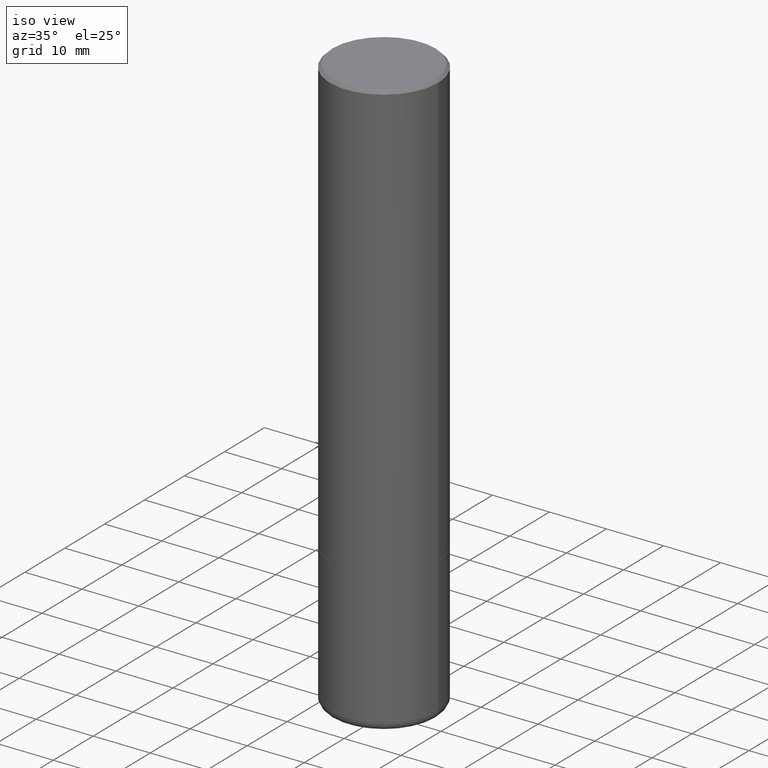
[diagram: clean part render]
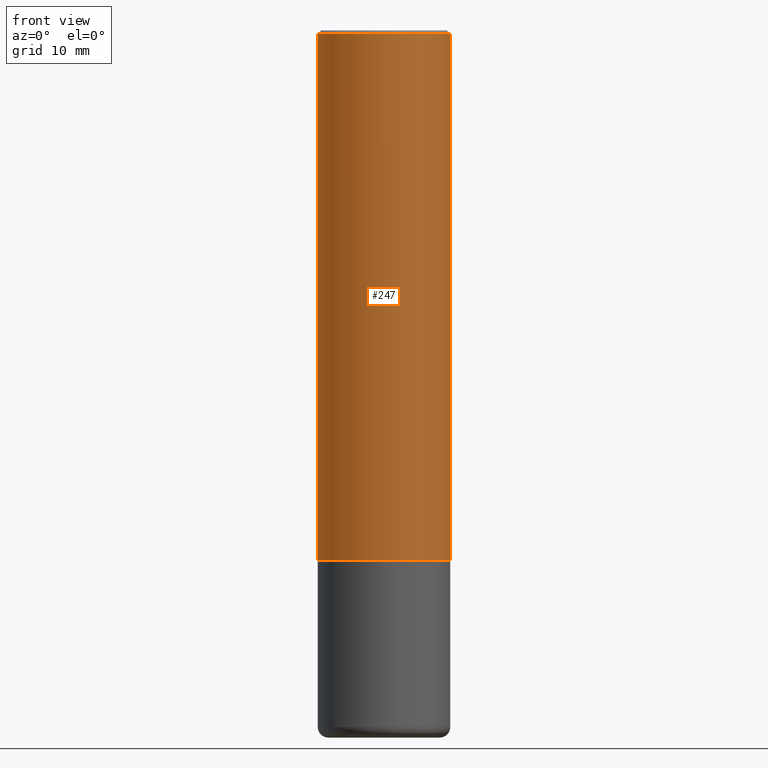
[diagram: tour spotlight — one face highlighted and labeled with its STEP entity id]
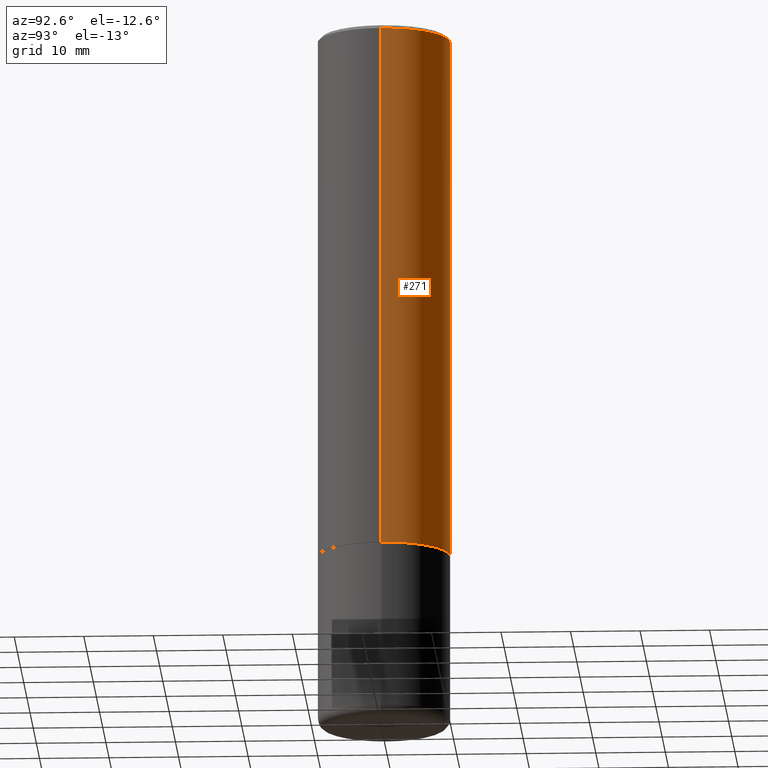
[diagram: tour spotlight — one face highlighted and labeled with its STEP entity id]
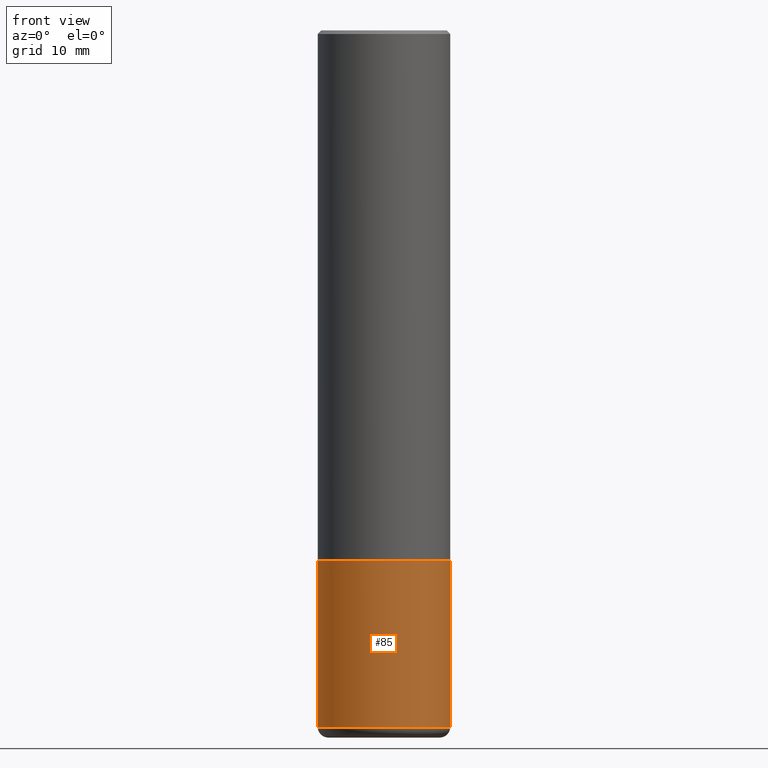
[diagram: tour spotlight — one face highlighted and labeled with its STEP entity id]
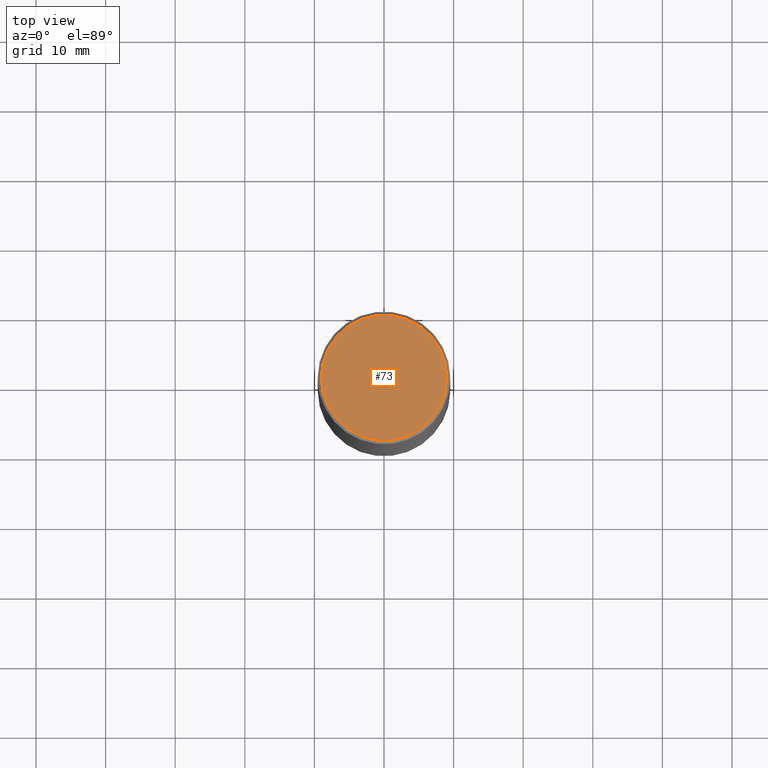
[diagram: tour spotlight — one face highlighted and labeled with its STEP entity id]
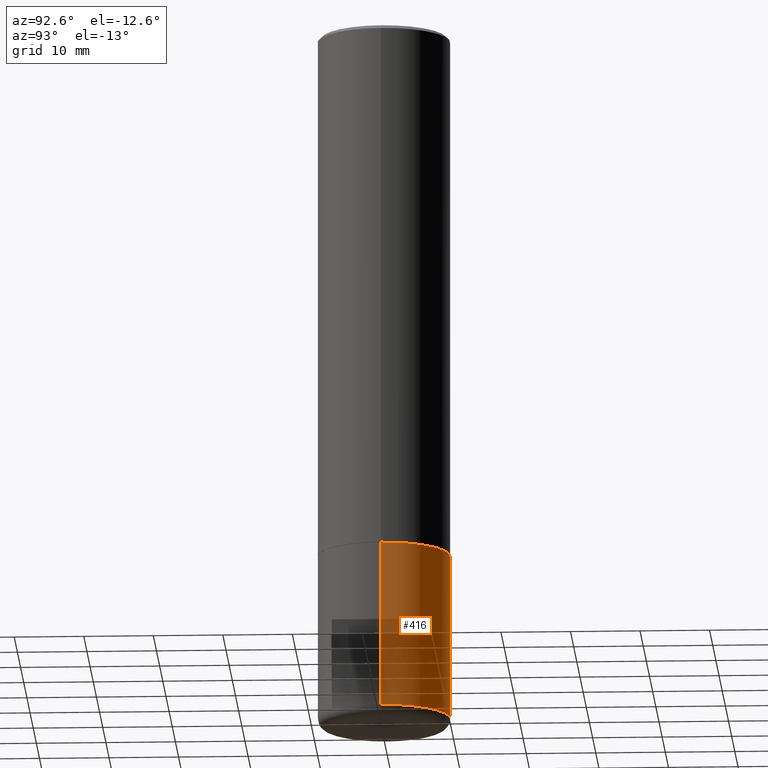
[diagram: tour spotlight — one face highlighted and labeled with its STEP entity id]
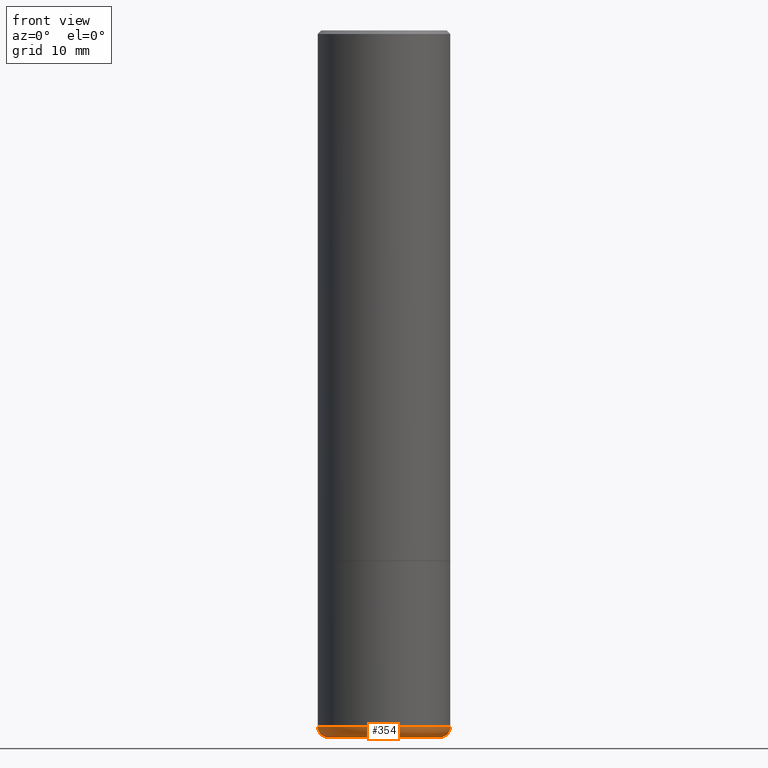
[diagram: tour spotlight — one face highlighted and labeled with its STEP entity id]
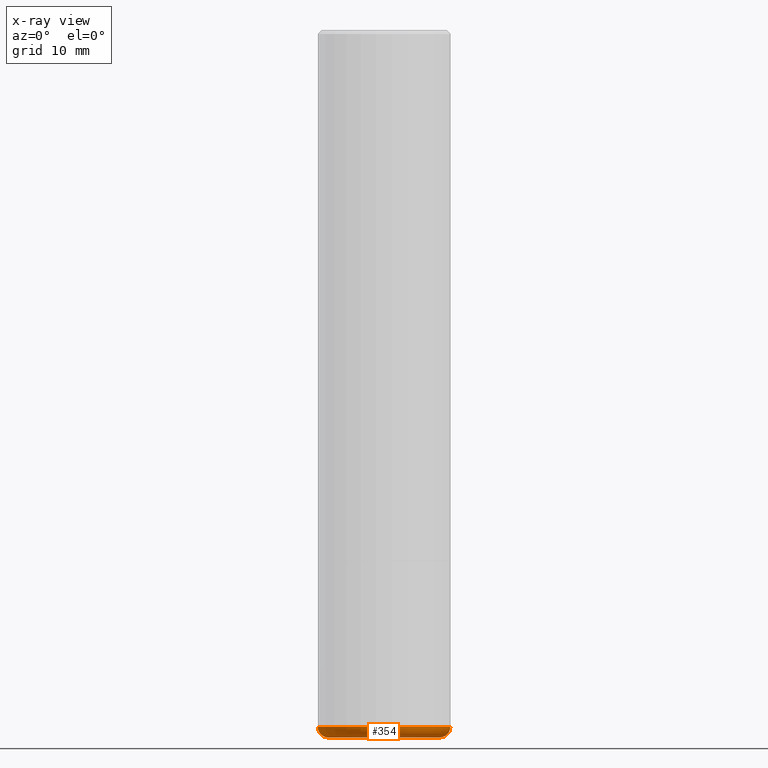
[diagram: x-ray of the same camera — body ghosted, this tour face saturated]
A machine part: a face-by-face anatomy tour. The part has 17 B-rep faces; the first image is the clean iso view, then the 6 largest visible faces are spotlighted one at a time (largest first), each with its STEP entity span.

Face 1 — front view, entity #247. In plain terms, the highlighted cylindrical surface (partial cylindrical patch) has radius 9.525 mm, axis along (-0, 0, 1).
Definition (entity closure, byte-faithful):
#24 = DIRECTION ( 'NONE',  ( -2.445468806185136877E-29, 3.491481338843145188E-15, 1.000000000000000000 ) ) ;
#31 = CIRCLE ( 'NONE', #484, 0.3749999999999991673 ) ;
#32 = CYLINDRICAL_SURFACE ( 'NONE', #436, 0.3749999999999992784 ) ;
#41 = DIRECTION ( 'NONE',  ( -2.445468806185136597E-29, 3.491481338843145583E-15, 1.000000000000000000 ) ) ;
#59 = CARTESIAN_POINT ( 'NONE',  ( 0.000000000000000000, 0.000000000000000000, 0.000000000000000000 ) ) ;
#67 = CARTESIAN_POINT ( 'NONE',  ( 0.3749999999999995004, -1.308956353932294179E-14, -2.999000000000000554 ) ) ;
#71 = ORIENTED_EDGE ( 'NONE', *, *, #192, .F. ) ;
#88 = CARTESIAN_POINT ( 'NONE',  ( -0.3749999999999992784, 2.664535259100370569E-15, -1.844600658845586235E-29 ) ) ;
#95 = DIRECTION ( 'NONE',  ( 1.000000000000000000, -6.982962677686267499E-15, 4.876176775795935232E-29 ) ) ;
#102 = DIRECTION ( 'NONE',  ( 1.000000000000000000, -6.982962677686266711E-15, 0.000000000000000000 ) ) ;
#106 = EDGE_CURVE ( 'NONE', #262, #216, #312, .T. ) ;
#124 = VERTEX_POINT ( 'NONE', #128 ) ;
#128 = CARTESIAN_POINT ( 'NONE',  ( -0.3749999999999991673, 2.548781377355480407E-15, -0.02000000000000020858 ) ) ;
#133 = CARTESIAN_POINT ( 'NONE',  ( 0.3749999999999991673, -2.642516375941182112E-15, -0.02000000000000020858 ) ) ;
#147 = ORIENTED_EDGE ( 'NONE', *, *, #462, .T. ) ;
#152 = DIRECTION ( 'NONE',  ( 1.000000000000000000, -6.982962677686266711E-15, 0.000000000000000000 ) ) ;
#167 = DIRECTION ( 'NONE',  ( -2.445468806185136877E-29, 3.491481338843145188E-15, 1.000000000000000000 ) ) ;
#171 = CARTESIAN_POINT ( 'NONE',  ( 0.3749999999999992784, -2.618611004132345283E-15, 1.828566290923472279E-29 ) ) ;
#181 = ORIENTED_EDGE ( 'NONE', *, *, #106, .T. ) ;
#192 = EDGE_CURVE ( 'NONE', #261, #124, #439, .T. ) ;
#210 = DIRECTION ( 'NONE',  ( -2.445468806185136597E-29, 3.491481338843145583E-15, 1.000000000000000000 ) ) ;
#213 = CARTESIAN_POINT ( 'NONE',  ( 4.890937612370324831E-31, -6.982962677686364332E-17, -0.02000000000000020858 ) ) ;
#216 = VERTEX_POINT ( 'NONE', #133 ) ;
#247 = ADVANCED_FACE ( 'NONE', ( #252 ), #32, .T. ) ;
#252 = FACE_OUTER_BOUND ( 'NONE', #256, .T. ) ;
#256 = EDGE_LOOP ( 'NONE', ( #71, #147, #181, #375 ) ) ;
#261 = VERTEX_POINT ( 'NONE', #486 ) ;
#262 = VERTEX_POINT ( 'NONE', #67 ) ;
#277 = EDGE_CURVE ( 'NONE', #124, #216, #31, .T. ) ;
#278 = VECTOR ( 'NONE', #24, 39.37007874015748143 ) ;
#288 = AXIS2_PLACEMENT_3D ( 'NONE', #382, #41, #152 ) ;
#312 = LINE ( 'NONE', #171, #451 ) ;
#325 = DIRECTION ( 'NONE',  ( -2.445468806185136597E-29, 3.491481338843145583E-15, 1.000000000000000000 ) ) ;
#375 = ORIENTED_EDGE ( 'NONE', *, *, #277, .F. ) ;
#382 = CARTESIAN_POINT ( 'NONE',  ( 7.333960949749226429E-29, -1.047095253519059492E-14, -2.999000000000000554 ) ) ;
#429 = CIRCLE ( 'NONE', #288, 0.3749999999999995004 ) ;
#436 = AXIS2_PLACEMENT_3D ( 'NONE', #59, #210, #95 ) ;
#439 = LINE ( 'NONE', #88, #278 ) ;
#451 = VECTOR ( 'NONE', #167, 39.37007874015748143 ) ;
#462 = EDGE_CURVE ( 'NONE', #261, #262, #429, .T. ) ;
#484 = AXIS2_PLACEMENT_3D ( 'NONE', #213, #325, #102 ) ;
#486 = CARTESIAN_POINT ( 'NONE',  ( -0.3749999999999993894, -2.605855821883354597E-15, -2.999000000000000554 ) ) ;

Face 2 — auxiliary view, entity #271. In plain terms, the highlighted cylindrical surface (partial cylindrical patch) has radius 9.525 mm, axis along (-0, 0, 1).
Definition (entity closure, byte-faithful):
#24 = DIRECTION ( 'NONE',  ( -2.445468806185136877E-29, 3.491481338843145188E-15, 1.000000000000000000 ) ) ;
#34 = DIRECTION ( 'NONE',  ( 1.000000000000000000, -6.982962677686266711E-15, 0.000000000000000000 ) ) ;
#60 = DIRECTION ( 'NONE',  ( -2.445468806185136597E-29, 3.491481338843145583E-15, 1.000000000000000000 ) ) ;
#67 = CARTESIAN_POINT ( 'NONE',  ( 0.3749999999999995004, -1.308956353932294179E-14, -2.999000000000000554 ) ) ;
#76 = CIRCLE ( 'NONE', #243, 0.3749999999999995004 ) ;
#78 = ORIENTED_EDGE ( 'NONE', *, *, #106, .F. ) ;
#88 = CARTESIAN_POINT ( 'NONE',  ( -0.3749999999999992784, 2.664535259100370569E-15, -1.844600658845586235E-29 ) ) ;
#96 = ORIENTED_EDGE ( 'NONE', *, *, #363, .T. ) ;
#106 = EDGE_CURVE ( 'NONE', #262, #216, #312, .T. ) ;
#109 = CIRCLE ( 'NONE', #229, 0.3749999999999991673 ) ;
#124 = VERTEX_POINT ( 'NONE', #128 ) ;
#128 = CARTESIAN_POINT ( 'NONE',  ( -0.3749999999999991673, 2.548781377355480407E-15, -0.02000000000000020858 ) ) ;
#133 = CARTESIAN_POINT ( 'NONE',  ( 0.3749999999999991673, -2.642516375941182112E-15, -0.02000000000000020858 ) ) ;
#142 = FACE_OUTER_BOUND ( 'NONE', #418, .T. ) ;
#144 = DIRECTION ( 'NONE',  ( 1.000000000000000000, -6.982962677686267499E-15, 4.876176775795935232E-29 ) ) ;
#165 = EDGE_CURVE ( 'NONE', #216, #124, #109, .T. ) ;
#167 = DIRECTION ( 'NONE',  ( -2.445468806185136877E-29, 3.491481338843145188E-15, 1.000000000000000000 ) ) ;
#171 = CARTESIAN_POINT ( 'NONE',  ( 0.3749999999999992784, -2.618611004132345283E-15, 1.828566290923472279E-29 ) ) ;
#177 = CARTESIAN_POINT ( 'NONE',  ( 0.000000000000000000, 0.000000000000000000, 0.000000000000000000 ) ) ;
#183 = CARTESIAN_POINT ( 'NONE',  ( 7.333960949749226429E-29, -1.047095253519059492E-14, -2.999000000000000554 ) ) ;
#192 = EDGE_CURVE ( 'NONE', #261, #124, #439, .T. ) ;
#212 = AXIS2_PLACEMENT_3D ( 'NONE', #177, #365, #144 ) ;
#216 = VERTEX_POINT ( 'NONE', #133 ) ;
#229 = AXIS2_PLACEMENT_3D ( 'NONE', #315, #318, #476 ) ;
#243 = AXIS2_PLACEMENT_3D ( 'NONE', #183, #60, #34 ) ;
#261 = VERTEX_POINT ( 'NONE', #486 ) ;
#262 = VERTEX_POINT ( 'NONE', #67 ) ;
#271 = ADVANCED_FACE ( 'NONE', ( #142 ), #291, .T. ) ;
#278 = VECTOR ( 'NONE', #24, 39.37007874015748143 ) ;
#291 = CYLINDRICAL_SURFACE ( 'NONE', #212, 0.3749999999999992784 ) ;
#312 = LINE ( 'NONE', #171, #451 ) ;
#315 = CARTESIAN_POINT ( 'NONE',  ( 4.890937612370324831E-31, -6.982962677686364332E-17, -0.02000000000000020858 ) ) ;
#318 = DIRECTION ( 'NONE',  ( -2.445468806185136597E-29, 3.491481338843145583E-15, 1.000000000000000000 ) ) ;
#338 = ORIENTED_EDGE ( 'NONE', *, *, #165, .F. ) ;
#363 = EDGE_CURVE ( 'NONE', #262, #261, #76, .T. ) ;
#365 = DIRECTION ( 'NONE',  ( -2.445468806185136597E-29, 3.491481338843145583E-15, 1.000000000000000000 ) ) ;
#413 = ORIENTED_EDGE ( 'NONE', *, *, #192, .T. ) ;
#418 = EDGE_LOOP ( 'NONE', ( #96, #413, #338, #78 ) ) ;
#439 = LINE ( 'NONE', #88, #278 ) ;
#451 = VECTOR ( 'NONE', #167, 39.37007874015748143 ) ;
#476 = DIRECTION ( 'NONE',  ( 1.000000000000000000, -6.982962677686266711E-15, 0.000000000000000000 ) ) ;
#486 = CARTESIAN_POINT ( 'NONE',  ( -0.3749999999999993894, -2.605855821883354597E-15, -2.999000000000000554 ) ) ;

Face 3 — front view, entity #85. In plain terms, the highlighted cylindrical surface (partial cylindrical patch) has radius 9.525 mm, axis along (-0, 0, 1).
Definition (entity closure, byte-faithful):
#28 = CYLINDRICAL_SURFACE ( 'NONE', #137, 0.3749999999999997780 ) ;
#43 = EDGE_LOOP ( 'NONE', ( #140, #120, #430, #220 ) ) ;
#50 = DIRECTION ( 'NONE',  ( 1.000000000000000000, -6.982962677686265922E-15, 4.876176775795935793E-29 ) ) ;
#74 = VERTEX_POINT ( 'NONE', #209 ) ;
#75 = CARTESIAN_POINT ( 'NONE',  ( 0.3750000000000000555, -1.637505545586899647E-14, -3.940002284616149097 ) ) ;
#85 = ADVANCED_FACE ( 'NONE', ( #364 ), #28, .T. ) ;
#117 = VERTEX_POINT ( 'NONE', #273 ) ;
#120 = ORIENTED_EDGE ( 'NONE', *, *, #211, .T. ) ;
#137 = AXIS2_PLACEMENT_3D ( 'NONE', #238, #397, #50 ) ;
#140 = ORIENTED_EDGE ( 'NONE', *, *, #289, .F. ) ;
#209 = CARTESIAN_POINT ( 'NONE',  ( -0.3750000000000000555, -9.450908975032663339E-15, -3.940002284616149097 ) ) ;
#211 = EDGE_CURVE ( 'NONE', #74, #457, #477, .T. ) ;
#220 = ORIENTED_EDGE ( 'NONE', *, *, #456, .F. ) ;
#238 = CARTESIAN_POINT ( 'NONE',  ( 0.000000000000000000, 0.000000000000000000, 0.000000000000000000 ) ) ;
#244 = AXIS2_PLACEMENT_3D ( 'NONE', #383, #349, #425 ) ;
#249 = CARTESIAN_POINT ( 'NONE',  ( 0.3749999999999995004, -1.309305502066178164E-14, -2.999999999999999556 ) ) ;
#257 = LINE ( 'NONE', #449, #387 ) ;
#273 = CARTESIAN_POINT ( 'NONE',  ( -0.3749999999999995004, -9.450908975032666494E-15, -2.999999999999999556 ) ) ;
#280 = DIRECTION ( 'NONE',  ( -2.445468806185136597E-29, 3.491481338843145583E-15, 1.000000000000000000 ) ) ;
#285 = AXIS2_PLACEMENT_3D ( 'NONE', #480, #280, #353 ) ;
#289 = EDGE_CURVE ( 'NONE', #74, #117, #257, .T. ) ;
#333 = DIRECTION ( 'NONE',  ( -2.445468806185136877E-29, 3.491481338843145188E-15, 1.000000000000000000 ) ) ;
#349 = DIRECTION ( 'NONE',  ( -2.445468806185136597E-29, 3.491481338843145583E-15, 1.000000000000000000 ) ) ;
#351 = VERTEX_POINT ( 'NONE', #249 ) ;
#353 = DIRECTION ( 'NONE',  ( 1.000000000000000000, -6.982962677686266711E-15, 0.000000000000000000 ) ) ;
#358 = VECTOR ( 'NONE', #333, 39.37007874015748143 ) ;
#364 = FACE_OUTER_BOUND ( 'NONE', #43, .T. ) ;
#383 = CARTESIAN_POINT ( 'NONE',  ( 7.336406418555408669E-29, -1.047444401652943478E-14, -2.999999999999999556 ) ) ;
#387 = VECTOR ( 'NONE', #455, 39.37007874015748143 ) ;
#389 = EDGE_CURVE ( 'NONE', #457, #351, #490, .T. ) ;
#397 = DIRECTION ( 'NONE',  ( -2.445468806185136597E-29, 3.491481338843145583E-15, 1.000000000000000000 ) ) ;
#414 = CARTESIAN_POINT ( 'NONE',  ( 0.3749999999999997780, -2.618611004132348044E-15, 1.828566290923474801E-29 ) ) ;
#425 = DIRECTION ( 'NONE',  ( 1.000000000000000000, -6.982962677686266711E-15, 0.000000000000000000 ) ) ;
#430 = ORIENTED_EDGE ( 'NONE', *, *, #389, .T. ) ;
#449 = CARTESIAN_POINT ( 'NONE',  ( -0.3749999999999997780, 2.664535259100374119E-15, -1.844600658845588477E-29 ) ) ;
#455 = DIRECTION ( 'NONE',  ( -2.445468806185136877E-29, 3.491481338843145188E-15, 1.000000000000000000 ) ) ;
#456 = EDGE_CURVE ( 'NONE', #117, #351, #468, .T. ) ;
#457 = VERTEX_POINT ( 'NONE', #75 ) ;
#468 = CIRCLE ( 'NONE', #244, 0.3749999999999995004 ) ;
#477 = CIRCLE ( 'NONE', #285, 0.3750000000000000555 ) ;
#480 = CARTESIAN_POINT ( 'NONE',  ( 9.635152683326964355E-29, -1.375644445173664487E-14, -3.940002284616149097 ) ) ;
#490 = LINE ( 'NONE', #414, #358 ) ;

Face 4 — top view, entity #73. In plain terms, the highlighted planar face has unit normal (0, -0, -1).
Definition (entity closure, byte-faithful):
#23 = AXIS2_PLACEMENT_3D ( 'NONE', #341, #464, #58 ) ;
#26 = DIRECTION ( 'NONE',  ( -2.445468806185136597E-29, 3.491481338843145583E-15, 1.000000000000000000 ) ) ;
#51 = EDGE_CURVE ( 'NONE', #282, #388, #366, .T. ) ;
#52 = CARTESIAN_POINT ( 'NONE',  ( -1.043851414335219820E-46, 1.490343170380447200E-32, 4.268512490100411279E-18 ) ) ;
#54 = AXIS2_PLACEMENT_3D ( 'NONE', #52, #26, #86 ) ;
#58 = DIRECTION ( 'NONE',  ( -1.000000000000000000, 6.982962677686265922E-15, -4.876176775795935793E-29 ) ) ;
#61 = AXIS2_PLACEMENT_3D ( 'NONE', #299, #424, #265 ) ;
#73 = ADVANCED_FACE ( 'NONE', ( #81 ), #391, .F. ) ;
#81 = FACE_OUTER_BOUND ( 'NONE', #159, .T. ) ;
#86 = DIRECTION ( 'NONE',  ( 1.000000000000000000, -6.982962677686265133E-15, 4.876231632512000515E-29 ) ) ;
#141 = EDGE_CURVE ( 'NONE', #388, #282, #401, .T. ) ;
#159 = EDGE_LOOP ( 'NONE', ( #328, #232 ) ) ;
#219 = CARTESIAN_POINT ( 'NONE',  ( -0.3549999999999990941, 2.513866563967049153E-15, 4.268512490082953109E-18 ) ) ;
#232 = ORIENTED_EDGE ( 'NONE', *, *, #141, .T. ) ;
#265 = DIRECTION ( 'NONE',  ( 1.000000000000000000, -6.982962677686265133E-15, 4.876231632512000515E-29 ) ) ;
#282 = VERTEX_POINT ( 'NONE', #219 ) ;
#299 = CARTESIAN_POINT ( 'NONE',  ( -1.043851414335219820E-46, 1.490343170380447200E-32, 4.268512490100411279E-18 ) ) ;
#328 = ORIENTED_EDGE ( 'NONE', *, *, #51, .T. ) ;
#330 = CARTESIAN_POINT ( 'NONE',  ( 0.3549999999999990941, -2.538996582575035132E-15, 4.268512490117958041E-18 ) ) ;
#341 = CARTESIAN_POINT ( 'NONE',  ( 2.478951750578617898E-15, 0.3549999999999990941, -1.237341619044263272E-15 ) ) ;
#366 = CIRCLE ( 'NONE', #61, 0.3549999999999990941 ) ;
#388 = VERTEX_POINT ( 'NONE', #330 ) ;
#391 = PLANE ( 'NONE',  #23 ) ;
#401 = CIRCLE ( 'NONE', #54, 0.3549999999999990941 ) ;
#424 = DIRECTION ( 'NONE',  ( -2.445468806185136597E-29, 3.491481338843145583E-15, 1.000000000000000000 ) ) ;
#464 = DIRECTION ( 'NONE',  ( 2.438088387897960049E-29, -3.491481338843145188E-15, -1.000000000000000000 ) ) ;

Face 5 — auxiliary view, entity #416. In plain terms, the highlighted cylindrical surface (partial cylindrical patch) has radius 9.525 mm, axis along (-0, 0, 1).
Definition (entity closure, byte-faithful):
#8 = EDGE_LOOP ( 'NONE', ( #253, #380, #275, #103 ) ) ;
#9 = DIRECTION ( 'NONE',  ( -2.445468806185136597E-29, 3.491481338843145583E-15, 1.000000000000000000 ) ) ;
#15 = DIRECTION ( 'NONE',  ( -2.445468806185136597E-29, 3.491481338843145583E-15, 1.000000000000000000 ) ) ;
#42 = CYLINDRICAL_SURFACE ( 'NONE', #263, 0.3749999999999997780 ) ;
#74 = VERTEX_POINT ( 'NONE', #209 ) ;
#75 = CARTESIAN_POINT ( 'NONE',  ( 0.3750000000000000555, -1.637505545586899647E-14, -3.940002284616149097 ) ) ;
#103 = ORIENTED_EDGE ( 'NONE', *, *, #389, .F. ) ;
#104 = CARTESIAN_POINT ( 'NONE',  ( 7.336406418555408669E-29, -1.047444401652943478E-14, -2.999999999999999556 ) ) ;
#117 = VERTEX_POINT ( 'NONE', #273 ) ;
#121 = CIRCLE ( 'NONE', #324, 0.3749999999999995004 ) ;
#148 = DIRECTION ( 'NONE',  ( -2.445468806185136597E-29, 3.491481338843145583E-15, 1.000000000000000000 ) ) ;
#176 = CIRCLE ( 'NONE', #230, 0.3750000000000000555 ) ;
#209 = CARTESIAN_POINT ( 'NONE',  ( -0.3750000000000000555, -9.450908975032663339E-15, -3.940002284616149097 ) ) ;
#223 = FACE_OUTER_BOUND ( 'NONE', #8, .T. ) ;
#230 = AXIS2_PLACEMENT_3D ( 'NONE', #465, #9, #463 ) ;
#249 = CARTESIAN_POINT ( 'NONE',  ( 0.3749999999999995004, -1.309305502066178164E-14, -2.999999999999999556 ) ) ;
#253 = ORIENTED_EDGE ( 'NONE', *, *, #441, .T. ) ;
#257 = LINE ( 'NONE', #449, #387 ) ;
#263 = AXIS2_PLACEMENT_3D ( 'NONE', #298, #15, #431 ) ;
#273 = CARTESIAN_POINT ( 'NONE',  ( -0.3749999999999995004, -9.450908975032666494E-15, -2.999999999999999556 ) ) ;
#275 = ORIENTED_EDGE ( 'NONE', *, *, #378, .F. ) ;
#289 = EDGE_CURVE ( 'NONE', #74, #117, #257, .T. ) ;
#298 = CARTESIAN_POINT ( 'NONE',  ( 0.000000000000000000, 0.000000000000000000, 0.000000000000000000 ) ) ;
#324 = AXIS2_PLACEMENT_3D ( 'NONE', #104, #148, #327 ) ;
#327 = DIRECTION ( 'NONE',  ( 1.000000000000000000, -6.982962677686266711E-15, 0.000000000000000000 ) ) ;
#333 = DIRECTION ( 'NONE',  ( -2.445468806185136877E-29, 3.491481338843145188E-15, 1.000000000000000000 ) ) ;
#351 = VERTEX_POINT ( 'NONE', #249 ) ;
#358 = VECTOR ( 'NONE', #333, 39.37007874015748143 ) ;
#378 = EDGE_CURVE ( 'NONE', #351, #117, #121, .T. ) ;
#380 = ORIENTED_EDGE ( 'NONE', *, *, #289, .T. ) ;
#387 = VECTOR ( 'NONE', #455, 39.37007874015748143 ) ;
#389 = EDGE_CURVE ( 'NONE', #457, #351, #490, .T. ) ;
#414 = CARTESIAN_POINT ( 'NONE',  ( 0.3749999999999997780, -2.618611004132348044E-15, 1.828566290923474801E-29 ) ) ;
#416 = ADVANCED_FACE ( 'NONE', ( #223 ), #42, .T. ) ;
#431 = DIRECTION ( 'NONE',  ( 1.000000000000000000, -6.982962677686265922E-15, 4.876176775795935793E-29 ) ) ;
#441 = EDGE_CURVE ( 'NONE', #457, #74, #176, .T. ) ;
#449 = CARTESIAN_POINT ( 'NONE',  ( -0.3749999999999997780, 2.664535259100374119E-15, -1.844600658845588477E-29 ) ) ;
#455 = DIRECTION ( 'NONE',  ( -2.445468806185136877E-29, 3.491481338843145188E-15, 1.000000000000000000 ) ) ;
#457 = VERTEX_POINT ( 'NONE', #75 ) ;
#463 = DIRECTION ( 'NONE',  ( 1.000000000000000000, -6.982962677686266711E-15, 0.000000000000000000 ) ) ;
#465 = CARTESIAN_POINT ( 'NONE',  ( 9.635152683326964355E-29, -1.375644445173664487E-14, -3.940002284616149097 ) ) ;
#490 = LINE ( 'NONE', #414, #358 ) ;

Face 6 — front view, entity #354. An x-ray twin of the same camera follows (body ghosted, this face saturated) — the face is partly hidden behind the body. In plain terms, the highlighted toroidal blend (fillet) surface has major radius 8.001 mm and minor (blend) radius 1.524 mm.
Definition (entity closure, byte-faithful):
#5 = EDGE_CURVE ( 'NONE', #384, #74, #14, .T. ) ;
#14 = CIRCLE ( 'NONE', #45, 0.06000000000000024758 ) ;
#25 = AXIS2_PLACEMENT_3D ( 'NONE', #390, #155, #158 ) ;
#39 = EDGE_LOOP ( 'NONE', ( #347, #302, #258, #284 ) ) ;
#45 = AXIS2_PLACEMENT_3D ( 'NONE', #164, #461, #156 ) ;
#74 = VERTEX_POINT ( 'NONE', #209 ) ;
#75 = CARTESIAN_POINT ( 'NONE',  ( 0.3750000000000000555, -1.637505545586899647E-14, -3.940002284616149097 ) ) ;
#100 = CIRCLE ( 'NONE', #25, 0.3144764078700981180 ) ;
#126 = EDGE_CURVE ( 'NONE', #235, #457, #236, .T. ) ;
#135 = CARTESIAN_POINT ( 'NONE',  ( 0.3144764078700981180, -1.616190237454231844E-14, -3.999999999999999556 ) ) ;
#150 = DIRECTION ( 'NONE',  ( 1.000000000000000000, -6.982962677686269077E-15, 4.883557194083113462E-29 ) ) ;
#155 = DIRECTION ( 'NONE',  ( -2.445468806185136597E-29, 3.491481338843145583E-15, 1.000000000000000000 ) ) ;
#156 = DIRECTION ( 'NONE',  ( -1.000000000000000000, 7.105427357600993970E-15, 0.000000000000000000 ) ) ;
#158 = DIRECTION ( 'NONE',  ( 1.000000000000000000, -6.982962677686269077E-15, 0.000000000000000000 ) ) ;
#164 = CARTESIAN_POINT ( 'NONE',  ( -0.3150000000000002798, -1.151823483409232651E-14, -3.940002284616149097 ) ) ;
#180 = CARTESIAN_POINT ( 'NONE',  ( 9.635152683326964355E-29, -1.375644445173664487E-14, -3.940002284616149097 ) ) ;
#198 = AXIS2_PLACEMENT_3D ( 'NONE', #398, #474, #405 ) ;
#209 = CARTESIAN_POINT ( 'NONE',  ( -0.3750000000000000555, -9.450908975032663339E-15, -3.940002284616149097 ) ) ;
#211 = EDGE_CURVE ( 'NONE', #74, #457, #477, .T. ) ;
#235 = VERTEX_POINT ( 'NONE', #135 ) ;
#236 = CIRCLE ( 'NONE', #198, 0.06000000000000024758 ) ;
#258 = ORIENTED_EDGE ( 'NONE', *, *, #126, .T. ) ;
#280 = DIRECTION ( 'NONE',  ( -2.445468806185136597E-29, 3.491481338843145583E-15, 1.000000000000000000 ) ) ;
#284 = ORIENTED_EDGE ( 'NONE', *, *, #211, .F. ) ;
#285 = AXIS2_PLACEMENT_3D ( 'NONE', #480, #280, #353 ) ;
#302 = ORIENTED_EDGE ( 'NONE', *, *, #446, .T. ) ;
#347 = ORIENTED_EDGE ( 'NONE', *, *, #5, .F. ) ;
#353 = DIRECTION ( 'NONE',  ( 1.000000000000000000, -6.982962677686266711E-15, 0.000000000000000000 ) ) ;
#354 = ADVANCED_FACE ( 'NONE', ( #406 ), #491, .T. ) ;
#384 = VERTEX_POINT ( 'NONE', #488 ) ;
#390 = CARTESIAN_POINT ( 'NONE',  ( 9.781875224740545266E-29, -1.396592535537258075E-14, -3.999999999999999556 ) ) ;
#398 = CARTESIAN_POINT ( 'NONE',  ( 0.3150000000000002798, -1.595607769520781983E-14, -3.940002284616149097 ) ) ;
#405 = DIRECTION ( 'NONE',  ( 1.000000000000000000, -6.982962677686271444E-15, 0.000000000000000000 ) ) ;
#406 = FACE_OUTER_BOUND ( 'NONE', #39, .T. ) ;
#407 = DIRECTION ( 'NONE',  ( -2.445468806185136597E-29, 3.491481338843145583E-15, 1.000000000000000000 ) ) ;
#446 = EDGE_CURVE ( 'NONE', #384, #235, #100, .T. ) ;
#450 = AXIS2_PLACEMENT_3D ( 'NONE', #180, #407, #150 ) ;
#457 = VERTEX_POINT ( 'NONE', #75 ) ;
#461 = DIRECTION ( 'NONE',  ( 7.105427357601001859E-15, 1.000000000000000000, -3.491481338843145583E-15 ) ) ;
#474 = DIRECTION ( 'NONE',  ( -6.982962677686266711E-15, -1.000000000000000000, 3.491481338843145583E-15 ) ) ;
#477 = CIRCLE ( 'NONE', #285, 0.3750000000000000555 ) ;
#480 = CARTESIAN_POINT ( 'NONE',  ( 9.635152683326964355E-29, -1.375644445173664487E-14, -3.940002284616149097 ) ) ;
#488 = CARTESIAN_POINT ( 'NONE',  ( -0.3144764078700981180, -1.141167263810427951E-14, -3.999999999999999556 ) ) ;
#491 = TOROIDAL_SURFACE ( 'NONE', #450, 0.3150000000000002798, 0.06000000000000023370 ) ;